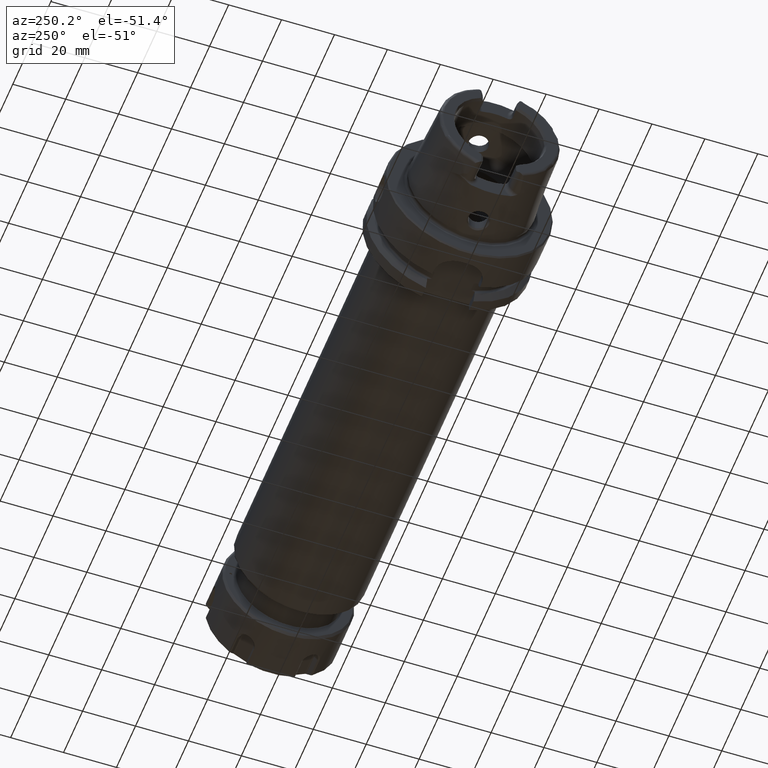
[diagram: clean part render]
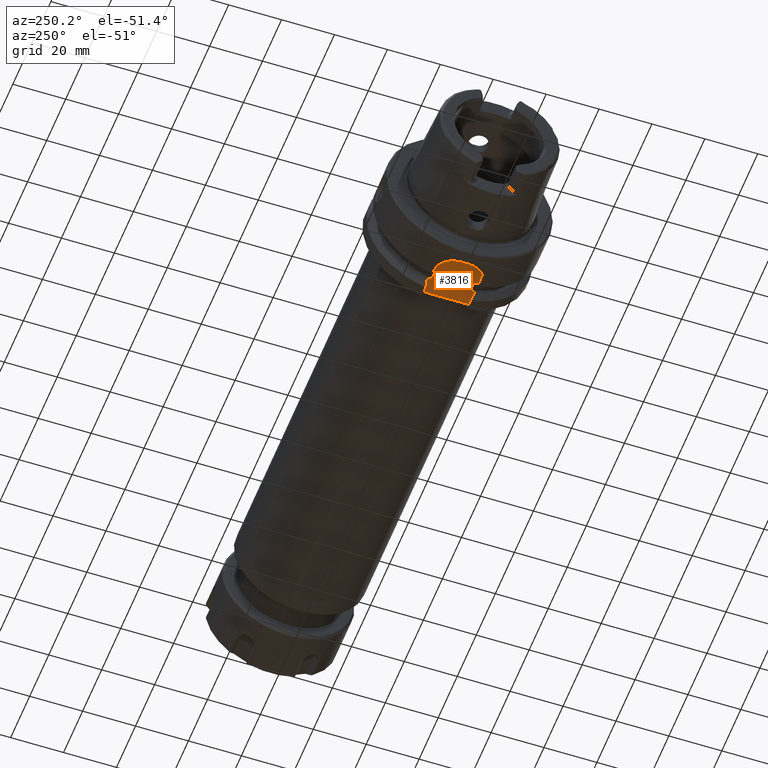
[diagram: same view with one face highlighted and labeled with its STEP entity id]
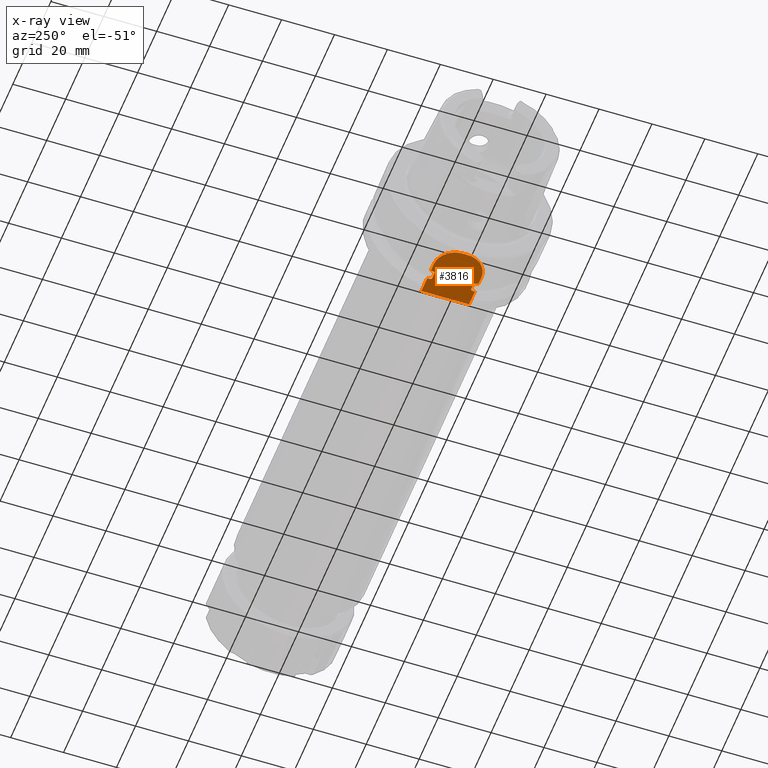
[diagram: x-ray of the same camera — body ghosted, the highlighted face saturated]
A machine part, auxiliary view. The second image highlights one B-rep face of the part: STEP entity #3816.
The next image is the same camera in x-ray: the body ghosted, the highlighted face saturated — about 0% of this face is hidden behind the body in this view.
In plain terms, the highlighted planar face has unit normal (0, 0, 1).
Its self-contained STEP definition (entity closure, byte-faithful):
#468=B_SPLINE_CURVE_WITH_KNOTS('',3,(#5695,#5696,#5697,#5698,#5699,#5700),
 .UNSPECIFIED.,.F.,.F.,(4,2,4),(2.35196351914715,2.69268202846742,2.83689651311882),
 .UNSPECIFIED.);
#470=B_SPLINE_CURVE_WITH_KNOTS('',3,(#5716,#5717,#5718,#5719,#5720,#5721),
 .UNSPECIFIED.,.F.,.F.,(4,2,4),(1.86703052517549,2.01124500982689,2.35196351914715),
 .UNSPECIFIED.);
#507=B_SPLINE_CURVE_WITH_KNOTS('',3,(#6678,#6679,#6680,#6681,#6682,#6683,
#6684,#6685,#6686,#6687),.UNSPECIFIED.,.F.,.F.,(4,2,2,2,4),(0.15835931245442,
0.289228035148658,0.316691561230897,0.323545183976989,0.328785692776271),
 .UNSPECIFIED.);
#508=B_SPLINE_CURVE_WITH_KNOTS('',3,(#6699,#6700,#6701,#6702,#6703,#6704,
#6705,#6706,#6707,#6708),.UNSPECIFIED.,.F.,.F.,(4,2,2,2,4),(0.328785692776271,
0.334026201575553,0.340879824321645,0.368343350403884,0.499212073098123),
 .UNSPECIFIED.);
#509=B_SPLINE_CURVE_WITH_KNOTS('',3,(#6711,#6712,#6713,#6714,#6715,#6716,
#6717,#6718,#6719,#6720),.UNSPECIFIED.,.F.,.F.,(4,2,2,2,4),(0.15835931245442,
0.289228035148658,0.316691561230897,0.323545183976988,0.32878569277627),
 .UNSPECIFIED.);
#510=B_SPLINE_CURVE_WITH_KNOTS('',3,(#6723,#6724,#6725,#6726,#6727,#6728,
#6729,#6730,#6731,#6732),.UNSPECIFIED.,.F.,.F.,(4,2,2,2,4),(0.32878569277627,
0.334026201575552,0.340879824321644,0.368343350403882,0.49921207309812),
 .UNSPECIFIED.);
#693=PLANE('',#4219);
#802=FACE_OUTER_BOUND('',#1014,.T.);
#1014=EDGE_LOOP('',(#2931,#2932,#2933,#2934,#2935,#2936,#2937,#2938,#2939,
#2940,#2941,#2942,#2943,#2944,#2945,#2946,#2947));
#1189=LINE('',#5737,#1382);
#1237=LINE('',#6629,#1430);
#1240=LINE('',#6662,#1433);
#1243=LINE('',#6689,#1436);
#1244=LINE('',#6693,#1437);
#1245=LINE('',#6697,#1438);
#1246=LINE('',#6710,#1439);
#1247=LINE('',#6721,#1440);
#1248=LINE('',#6733,#1441);
#1382=VECTOR('',#4635,10.);
#1430=VECTOR('',#4851,10.);
#1433=VECTOR('',#4856,10.);
#1436=VECTOR('',#4861,10.);
#1437=VECTOR('',#4864,10.);
#1438=VECTOR('',#4867,10.);
#1439=VECTOR('',#4868,10.);
#1440=VECTOR('',#4869,10.);
#1441=VECTOR('',#4870,10.);
#1630=CIRCLE('',#4220,8.);
#1631=CIRCLE('',#4221,8.);
#1795=VERTEX_POINT('',#5692);
#1796=VERTEX_POINT('',#5694);
#1799=VERTEX_POINT('',#5714);
#1806=VERTEX_POINT('',#5735);
#1908=VERTEX_POINT('',#6624);
#1913=VERTEX_POINT('',#6659);
#1914=VERTEX_POINT('',#6661);
#1918=VERTEX_POINT('',#6676);
#1919=VERTEX_POINT('',#6677);
#1920=VERTEX_POINT('',#6688);
#1921=VERTEX_POINT('',#6690);
#1922=VERTEX_POINT('',#6692);
#1923=VERTEX_POINT('',#6694);
#1924=VERTEX_POINT('',#6696);
#1925=VERTEX_POINT('',#6698);
#1926=VERTEX_POINT('',#6709);
#1927=VERTEX_POINT('',#6722);
#2144=EDGE_CURVE('',#1796,#1795,#468,.F.);
#2148=EDGE_CURVE('',#1795,#1799,#470,.F.);
#2156=EDGE_CURVE('',#1806,#1799,#1189,.T.);
#2294=EDGE_CURVE('',#1908,#1806,#1237,.T.);
#2300=EDGE_CURVE('',#1913,#1914,#1240,.T.);
#2305=EDGE_CURVE('',#1918,#1919,#507,.T.);
#2306=EDGE_CURVE('',#1920,#1918,#1243,.T.);
#2307=EDGE_CURVE('',#1921,#1920,#1630,.T.);
#2308=EDGE_CURVE('',#1922,#1921,#1244,.T.);
#2309=EDGE_CURVE('',#1923,#1922,#1631,.T.);
#2310=EDGE_CURVE('',#1924,#1923,#1245,.T.);
#2311=EDGE_CURVE('',#1925,#1924,#508,.T.);
#2312=EDGE_CURVE('',#1926,#1925,#1246,.T.);
#2313=EDGE_CURVE('',#1914,#1926,#509,.T.);
#2314=EDGE_CURVE('',#1796,#1913,#1247,.T.);
#2315=EDGE_CURVE('',#1927,#1908,#510,.T.);
#2316=EDGE_CURVE('',#1919,#1927,#1248,.T.);
#2931=ORIENTED_EDGE('',*,*,#2305,.F.);
#2932=ORIENTED_EDGE('',*,*,#2306,.F.);
#2933=ORIENTED_EDGE('',*,*,#2307,.F.);
#2934=ORIENTED_EDGE('',*,*,#2308,.F.);
#2935=ORIENTED_EDGE('',*,*,#2309,.F.);
#2936=ORIENTED_EDGE('',*,*,#2310,.F.);
#2937=ORIENTED_EDGE('',*,*,#2311,.F.);
#2938=ORIENTED_EDGE('',*,*,#2312,.F.);
#2939=ORIENTED_EDGE('',*,*,#2313,.F.);
#2940=ORIENTED_EDGE('',*,*,#2300,.F.);
#2941=ORIENTED_EDGE('',*,*,#2314,.F.);
#2942=ORIENTED_EDGE('',*,*,#2144,.T.);
#2943=ORIENTED_EDGE('',*,*,#2148,.T.);
#2944=ORIENTED_EDGE('',*,*,#2156,.F.);
#2945=ORIENTED_EDGE('',*,*,#2294,.F.);
#2946=ORIENTED_EDGE('',*,*,#2315,.F.);
#2947=ORIENTED_EDGE('',*,*,#2316,.F.);
#3816=ADVANCED_FACE('',(#802),#693,.F.);
#4219=AXIS2_PLACEMENT_3D('',#6675,#4859,#4860);
#4220=AXIS2_PLACEMENT_3D('',#6691,#4862,#4863);
#4221=AXIS2_PLACEMENT_3D('',#6695,#4865,#4866);
#4635=DIRECTION('',(0.,1.,0.));
#4851=DIRECTION('',(1.,-2.56205313375036E-16,0.));
#4856=DIRECTION('',(-1.,2.56205313375036E-16,0.));
#4859=DIRECTION('center_axis',(0.,0.,1.));
#4860=DIRECTION('ref_axis',(1.,0.,0.));
#4861=DIRECTION('',(1.,-2.56205313375036E-16,0.));
#4862=DIRECTION('center_axis',(0.,0.,1.));
#4863=DIRECTION('ref_axis',(-1.,-2.42861286636753E-16,0.));
#4864=DIRECTION('',(0.,-1.,0.));
#4865=DIRECTION('center_axis',(0.,0.,1.));
#4866=DIRECTION('ref_axis',(0.,1.,0.));
#4867=DIRECTION('',(-1.,2.56205313375036E-16,0.));
#4868=DIRECTION('',(-1.,0.,0.));
#4869=DIRECTION('',(0.,1.,0.));
#4870=DIRECTION('',(1.,0.,0.));
#5692=CARTESIAN_POINT('',(26.0635083268963,-1.62265700887024E-15,-26.5));
#5694=CARTESIAN_POINT('',(26.,5.17204021639429,-26.5));
#5695=CARTESIAN_POINT('Ctrl Pts',(26.0635083268963,1.38777878078145E-16,
-26.5));
#5696=CARTESIAN_POINT('Ctrl Pts',(26.0635083268963,1.13572836440089,-26.5));
#5697=CARTESIAN_POINT('Ctrl Pts',(26.0355357872666,2.49831530787329,-26.5));
#5698=CARTESIAN_POINT('Ctrl Pts',(26.007646638458,4.1145180118351,-26.5));
#5699=CARTESIAN_POINT('Ctrl Pts',(26.,4.69132526755629,-26.5));
#5700=CARTESIAN_POINT('Ctrl Pts',(26.,5.17204021639429,-26.5));
#5714=CARTESIAN_POINT('',(26.,-5.17204021639429,-26.5));
#5716=CARTESIAN_POINT('Ctrl Pts',(26.,-5.17204021639429,-26.5));
#5717=CARTESIAN_POINT('Ctrl Pts',(26.,-4.69132526755629,-26.5));
#5718=CARTESIAN_POINT('Ctrl Pts',(26.007646638458,-4.1145180118351,-26.5));
#5719=CARTESIAN_POINT('Ctrl Pts',(26.0355357872666,-2.49831530787329,-26.5));
#5720=CARTESIAN_POINT('Ctrl Pts',(26.0635083268963,-1.13572836440089,-26.5));
#5721=CARTESIAN_POINT('Ctrl Pts',(26.0635083268963,-2.77555756156289E-16,
-26.5));
#5735=CARTESIAN_POINT('',(26.,-9.,-26.5));
#5737=CARTESIAN_POINT('',(26.,1.94289029309402E-15,-26.5));
#6624=CARTESIAN_POINT('',(19.8748205133158,-9.,-26.5));
#6629=CARTESIAN_POINT('',(13.,-9.,-26.5));
#6659=CARTESIAN_POINT('',(26.,9.,-26.5));
#6661=CARTESIAN_POINT('',(19.8748205133158,9.,-26.5));
#6662=CARTESIAN_POINT('',(26.,9.,-26.5));
#6675=CARTESIAN_POINT('Origin',(15.5,3.88578058618805E-15,-26.5));
#6676=CARTESIAN_POINT('',(16.1251794866842,-9.,-26.5));
#6677=CARTESIAN_POINT('',(16.625,-7.34846922834952,-26.5));
#6678=CARTESIAN_POINT('Ctrl Pts',(16.1251794866842,-9.,-26.5));
#6679=CARTESIAN_POINT('Ctrl Pts',(16.12898241235,-8.55877260788573,-26.5));
#6680=CARTESIAN_POINT('Ctrl Pts',(16.1819334034884,-8.04136347440828,-26.5));
#6681=CARTESIAN_POINT('Ctrl Pts',(16.3906456489289,-7.5566112023157,-26.5));
#6682=CARTESIAN_POINT('Ctrl Pts',(16.4411490019356,-7.4590543697872,-26.5));
#6683=CARTESIAN_POINT('Ctrl Pts',(16.5270295504762,-7.38349170057081,-26.5));
#6684=CARTESIAN_POINT('Ctrl Pts',(16.5496994821687,-7.36807649661538,-26.5));
#6685=CARTESIAN_POINT('Ctrl Pts',(16.587038394856,-7.35287762173868,-26.5));
#6686=CARTESIAN_POINT('Ctrl Pts',(16.6075316373357,-7.34846922834952,-26.5));
#6687=CARTESIAN_POINT('Ctrl Pts',(16.625,-7.34846922834952,-26.5));
#6688=CARTESIAN_POINT('',(13.,-9.,-26.5));
#6689=CARTESIAN_POINT('',(13.,-9.,-26.5));
#6690=CARTESIAN_POINT('',(5.,-0.999999999999999,-26.5));
#6691=CARTESIAN_POINT('Origin',(13.,-0.999999999999997,-26.5));
#6692=CARTESIAN_POINT('',(5.,1.,-26.5));
#6693=CARTESIAN_POINT('',(5.,1.,-26.5));
#6694=CARTESIAN_POINT('',(13.,9.00000000000001,-26.5));
#6695=CARTESIAN_POINT('Origin',(13.,1.,-26.5));
#6696=CARTESIAN_POINT('',(16.1251794866842,9.,-26.5));
#6697=CARTESIAN_POINT('',(26.,9.,-26.5));
#6698=CARTESIAN_POINT('',(16.625,7.34846922834952,-26.5));
#6699=CARTESIAN_POINT('Ctrl Pts',(16.625,7.34846922834952,-26.5));
#6700=CARTESIAN_POINT('Ctrl Pts',(16.6075316373357,7.34846922834952,-26.5));
#6701=CARTESIAN_POINT('Ctrl Pts',(16.587038394856,7.35287762173868,-26.5));
#6702=CARTESIAN_POINT('Ctrl Pts',(16.5496994821687,7.36807649661538,-26.5));
#6703=CARTESIAN_POINT('Ctrl Pts',(16.5270295504762,7.38349170057081,-26.5));
#6704=CARTESIAN_POINT('Ctrl Pts',(16.4411490019356,7.4590543697872,-26.5));
#6705=CARTESIAN_POINT('Ctrl Pts',(16.3906456489289,7.5566112023157,-26.5));
#6706=CARTESIAN_POINT('Ctrl Pts',(16.1819334034884,8.04136347440828,-26.5));
#6707=CARTESIAN_POINT('Ctrl Pts',(16.12898241235,8.55877260788573,-26.5));
#6708=CARTESIAN_POINT('Ctrl Pts',(16.1251794866842,9.,-26.5));
#6709=CARTESIAN_POINT('',(19.375,7.34846922834952,-26.5));
#6710=CARTESIAN_POINT('',(18.,7.34846922834952,-26.5));
#6711=CARTESIAN_POINT('Ctrl Pts',(19.8748205133158,9.,-26.5));
#6712=CARTESIAN_POINT('Ctrl Pts',(19.87101758765,8.55877260788573,-26.5));
#6713=CARTESIAN_POINT('Ctrl Pts',(19.8180665965116,8.04136347440828,-26.5));
#6714=CARTESIAN_POINT('Ctrl Pts',(19.6093543510711,7.5566112023157,-26.5));
#6715=CARTESIAN_POINT('Ctrl Pts',(19.5588509980644,7.45905436978719,-26.5));
#6716=CARTESIAN_POINT('Ctrl Pts',(19.4729704495238,7.38349170057082,-26.5));
#6717=CARTESIAN_POINT('Ctrl Pts',(19.4503005178313,7.3680764966154,-26.5));
#6718=CARTESIAN_POINT('Ctrl Pts',(19.412961605144,7.35287762173869,-26.5));
#6719=CARTESIAN_POINT('Ctrl Pts',(19.3924683626643,7.34846922834952,-26.5));
#6720=CARTESIAN_POINT('Ctrl Pts',(19.375,7.34846922834952,-26.5));
#6721=CARTESIAN_POINT('',(26.,1.94289029309402E-15,-26.5));
#6722=CARTESIAN_POINT('',(19.375,-7.34846922834952,-26.5));
#6723=CARTESIAN_POINT('Ctrl Pts',(19.375,-7.34846922834952,-26.5));
#6724=CARTESIAN_POINT('Ctrl Pts',(19.3924683626643,-7.34846922834952,-26.5));
#6725=CARTESIAN_POINT('Ctrl Pts',(19.412961605144,-7.35287762173869,-26.5));
#6726=CARTESIAN_POINT('Ctrl Pts',(19.4503005178313,-7.3680764966154,-26.5));
#6727=CARTESIAN_POINT('Ctrl Pts',(19.4729704495238,-7.38349170057082,-26.5));
#6728=CARTESIAN_POINT('Ctrl Pts',(19.5588509980644,-7.45905436978719,-26.5));
#6729=CARTESIAN_POINT('Ctrl Pts',(19.6093543510711,-7.5566112023157,-26.5));
#6730=CARTESIAN_POINT('Ctrl Pts',(19.8180665965116,-8.04136347440828,-26.5));
#6731=CARTESIAN_POINT('Ctrl Pts',(19.87101758765,-8.55877260788573,-26.5));
#6732=CARTESIAN_POINT('Ctrl Pts',(19.8748205133158,-9.,-26.5));
#6733=CARTESIAN_POINT('',(18.,-7.34846922834952,-26.5));